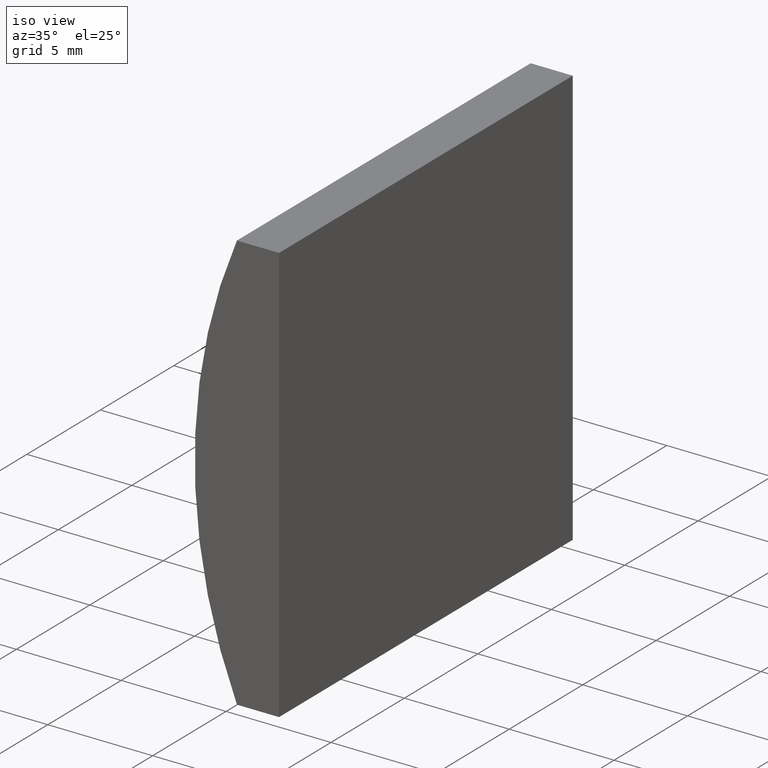
[diagram: clean part render]
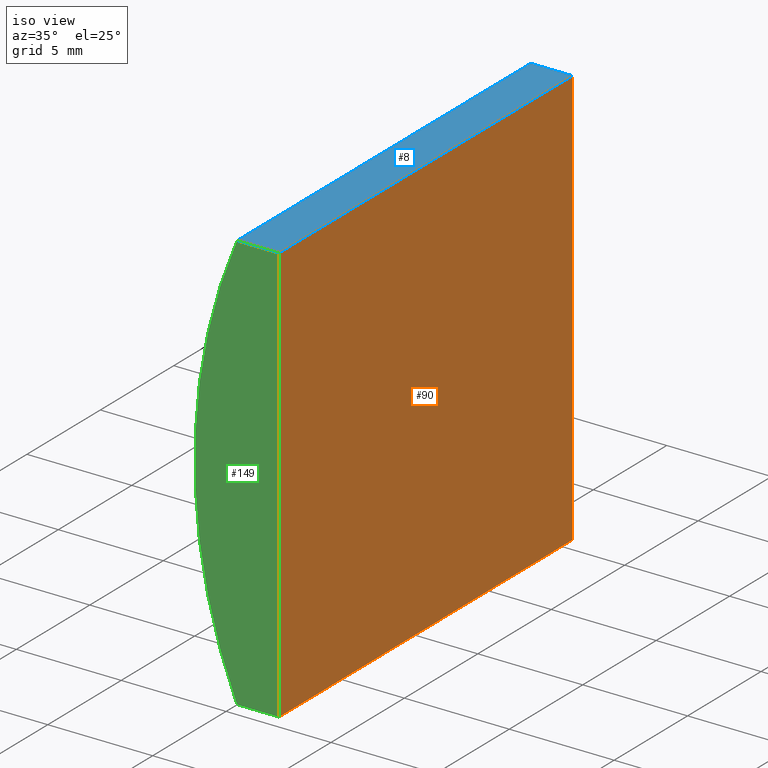
[diagram: same view with three faces highlighted in distinct colors, each labeled with its STEP entity id]
A machine part, iso view with three faces highlighted in distinct colors.
Their STEP definitions:

[orange] entity #90 — the highlighted planar face has unit normal (-1, 0, 0).
#13 = CARTESIAN_POINT ( 'NONE',  ( -17.47479566514874000, 0.0000000000000000000, -9.999999999999996400 ) ) ;
#19 = VECTOR ( 'NONE', #172, 1000.000000000000000 ) ;
#20 = VECTOR ( 'NONE', #185, 1000.000000000000000 ) ;
#24 = CARTESIAN_POINT ( 'NONE',  ( -17.47479566514874000, 20.00000000000000000, -9.999999999999996400 ) ) ;
#32 = VERTEX_POINT ( 'NONE', #102 ) ;
#37 = ORIENTED_EDGE ( 'NONE', *, *, #128, .T. ) ;
#40 = LINE ( 'NONE', #13, #161 ) ;
#46 = LINE ( 'NONE', #52, #65 ) ;
#51 = CARTESIAN_POINT ( 'NONE',  ( -17.47479566514874000, 20.00000000000000000, -9.999999999999996400 ) ) ;
#52 = CARTESIAN_POINT ( 'NONE',  ( -17.47479566514874000, 20.00000000000000000, -9.999999999999996400 ) ) ;
#53 = CARTESIAN_POINT ( 'NONE',  ( -17.47479566514874000, 20.00000000000000000, -9.999999999999996400 ) ) ;
#65 = VECTOR ( 'NONE', #191, 1000.000000000000000 ) ;
#69 = VERTEX_POINT ( 'NONE', #53 ) ;
#71 = ORIENTED_EDGE ( 'NONE', *, *, #132, .T. ) ;
#75 = ORIENTED_EDGE ( 'NONE', *, *, #201, .F. ) ;
#81 = EDGE_LOOP ( 'NONE', ( #71, #193, #75, #37 ) ) ;
#90 = ADVANCED_FACE ( 'NONE', ( #100 ), #109, .F. ) ;
#92 = EDGE_CURVE ( 'NONE', #69, #32, #174, .T. ) ;
#100 = FACE_OUTER_BOUND ( 'NONE', #81, .T. ) ;
#102 = CARTESIAN_POINT ( 'NONE',  ( -17.47479566514874000, 0.0000000000000000000, -9.999999999999996400 ) ) ;
#109 = PLANE ( 'NONE',  #157 ) ;
#113 = VERTEX_POINT ( 'NONE', #171 ) ;
#121 = CARTESIAN_POINT ( 'NONE',  ( -17.47479566514873300, 20.00000000000000000, 10.00000000000000000 ) ) ;
#128 = EDGE_CURVE ( 'NONE', #162, #113, #155, .T. ) ;
#132 = EDGE_CURVE ( 'NONE', #113, #32, #40, .T. ) ;
#145 = DIRECTION ( 'NONE',  ( -3.469446951953614700E-016, -0.0000000000000000000, -1.000000000000000000 ) ) ;
#155 = LINE ( 'NONE', #121, #20 ) ;
#157 = AXIS2_PLACEMENT_3D ( 'NONE', #24, #202, #204 ) ;
#161 = VECTOR ( 'NONE', #145, 1000.000000000000000 ) ;
#162 = VERTEX_POINT ( 'NONE', #186 ) ;
#171 = CARTESIAN_POINT ( 'NONE',  ( -17.47479566514873300, 0.0000000000000000000, 10.00000000000000000 ) ) ;
#172 = DIRECTION ( 'NONE',  ( -0.0000000000000000000, -1.000000000000000000, -0.0000000000000000000 ) ) ;
#174 = LINE ( 'NONE', #51, #19 ) ;
#185 = DIRECTION ( 'NONE',  ( -0.0000000000000000000, -1.000000000000000000, -0.0000000000000000000 ) ) ;
#186 = CARTESIAN_POINT ( 'NONE',  ( -17.47479566514873300, 20.00000000000000000, 10.00000000000000000 ) ) ;
#191 = DIRECTION ( 'NONE',  ( -3.469446951953614700E-016, -0.0000000000000000000, -1.000000000000000000 ) ) ;
#193 = ORIENTED_EDGE ( 'NONE', *, *, #92, .F. ) ;
#201 = EDGE_CURVE ( 'NONE', #162, #69, #46, .T. ) ;
#202 = DIRECTION ( 'NONE',  ( -1.000000000000000000, 0.0000000000000000000, 3.469446951953615200E-016 ) ) ;
#204 = DIRECTION ( 'NONE',  ( 3.469446951953615200E-016, 0.0000000000000000000, 1.000000000000000000 ) ) ;

[blue] entity #8 — the highlighted planar face has unit normal (0, 0, -1).
#8 = ADVANCED_FACE ( 'NONE', ( #91 ), #184, .F. ) ;
#10 = EDGE_CURVE ( 'NONE', #99, #105, #108, .T. ) ;
#14 = DIRECTION ( 'NONE',  ( -1.000000000000000000, 0.0000000000000000000, -0.0000000000000000000 ) ) ;
#15 = ORIENTED_EDGE ( 'NONE', *, *, #199, .T. ) ;
#17 = ORIENTED_EDGE ( 'NONE', *, *, #10, .T. ) ;
#20 = VECTOR ( 'NONE', #185, 1000.000000000000000 ) ;
#43 = DIRECTION ( 'NONE',  ( 0.0000000000000000000, 0.0000000000000000000, -1.000000000000000000 ) ) ;
#59 = EDGE_LOOP ( 'NONE', ( #15, #60, #147, #17 ) ) ;
#60 = ORIENTED_EDGE ( 'NONE', *, *, #128, .F. ) ;
#67 = CARTESIAN_POINT ( 'NONE',  ( -19.48221373003152100, 20.00000000000000000, 10.00000000000000000 ) ) ;
#74 = EDGE_CURVE ( 'NONE', #99, #162, #117, .T. ) ;
#78 = DIRECTION ( 'NONE',  ( 1.000000000000000000, 0.0000000000000000000, 0.0000000000000000000 ) ) ;
#80 = CARTESIAN_POINT ( 'NONE',  ( -19.48221373003152100, 20.00000000000000000, 10.00000000000000000 ) ) ;
#86 = CARTESIAN_POINT ( 'NONE',  ( -19.48221373003152100, 0.0000000000000000000, 10.00000000000000000 ) ) ;
#91 = FACE_OUTER_BOUND ( 'NONE', #59, .T. ) ;
#93 = VECTOR ( 'NONE', #78, 1000.000000000000000 ) ;
#94 = DIRECTION ( 'NONE',  ( -0.0000000000000000000, -1.000000000000000000, -0.0000000000000000000 ) ) ;
#96 = LINE ( 'NONE', #86, #93 ) ;
#98 = CARTESIAN_POINT ( 'NONE',  ( -19.48221373003152100, 20.00000000000000000, 10.00000000000000000 ) ) ;
#99 = VERTEX_POINT ( 'NONE', #98 ) ;
#105 = VERTEX_POINT ( 'NONE', #169 ) ;
#108 = LINE ( 'NONE', #80, #127 ) ;
#113 = VERTEX_POINT ( 'NONE', #171 ) ;
#116 = DIRECTION ( 'NONE',  ( 1.000000000000000000, 0.0000000000000000000, 0.0000000000000000000 ) ) ;
#117 = LINE ( 'NONE', #187, #173 ) ;
#118 = AXIS2_PLACEMENT_3D ( 'NONE', #67, #43, #14 ) ;
#121 = CARTESIAN_POINT ( 'NONE',  ( -17.47479566514873300, 20.00000000000000000, 10.00000000000000000 ) ) ;
#127 = VECTOR ( 'NONE', #94, 1000.000000000000000 ) ;
#128 = EDGE_CURVE ( 'NONE', #162, #113, #155, .T. ) ;
#147 = ORIENTED_EDGE ( 'NONE', *, *, #74, .F. ) ;
#155 = LINE ( 'NONE', #121, #20 ) ;
#162 = VERTEX_POINT ( 'NONE', #186 ) ;
#169 = CARTESIAN_POINT ( 'NONE',  ( -19.48221373003152100, 0.0000000000000000000, 10.00000000000000000 ) ) ;
#171 = CARTESIAN_POINT ( 'NONE',  ( -17.47479566514873300, 0.0000000000000000000, 10.00000000000000000 ) ) ;
#173 = VECTOR ( 'NONE', #116, 1000.000000000000000 ) ;
#184 = PLANE ( 'NONE',  #118 ) ;
#185 = DIRECTION ( 'NONE',  ( -0.0000000000000000000, -1.000000000000000000, -0.0000000000000000000 ) ) ;
#186 = CARTESIAN_POINT ( 'NONE',  ( -17.47479566514873300, 20.00000000000000000, 10.00000000000000000 ) ) ;
#187 = CARTESIAN_POINT ( 'NONE',  ( -19.48221373003152100, 20.00000000000000000, 10.00000000000000000 ) ) ;
#199 = EDGE_CURVE ( 'NONE', #105, #113, #96, .T. ) ;

[green] entity #149 — the highlighted planar face has unit normal (0, 1, 0).
#4 = EDGE_LOOP ( 'NONE', ( #122, #11, #178, #62 ) ) ;
#5 = EDGE_CURVE ( 'NONE', #54, #105, #12, .T. ) ;
#7 = DIRECTION ( 'NONE',  ( -1.000000000000000000, -0.0000000000000000000, -1.728313106595564600E-015 ) ) ;
#11 = ORIENTED_EDGE ( 'NONE', *, *, #176, .F. ) ;
#12 = CIRCLE ( 'NONE', #70, 25.85000000000000500 ) ;
#13 = CARTESIAN_POINT ( 'NONE',  ( -17.47479566514874000, 0.0000000000000000000, -9.999999999999996400 ) ) ;
#23 = FACE_OUTER_BOUND ( 'NONE', #4, .T. ) ;
#32 = VERTEX_POINT ( 'NONE', #102 ) ;
#34 = DIRECTION ( 'NONE',  ( 0.0000000000000000000, 1.000000000000000000, 0.0000000000000000000 ) ) ;
#40 = LINE ( 'NONE', #13, #161 ) ;
#47 = PLANE ( 'NONE',  #103 ) ;
#54 = VERTEX_POINT ( 'NONE', #175 ) ;
#58 = CARTESIAN_POINT ( 'NONE',  ( 4.355204334851265500, 0.0000000000000000000, 4.286263797015675000E-017 ) ) ;
#62 = ORIENTED_EDGE ( 'NONE', *, *, #199, .F. ) ;
#70 = AXIS2_PLACEMENT_3D ( 'NONE', #112, #34, #146 ) ;
#73 = CARTESIAN_POINT ( 'NONE',  ( -19.48221373003152100, 0.0000000000000000000, -10.00000000000000000 ) ) ;
#78 = DIRECTION ( 'NONE',  ( 1.000000000000000000, 0.0000000000000000000, 0.0000000000000000000 ) ) ;
#86 = CARTESIAN_POINT ( 'NONE',  ( -19.48221373003152100, 0.0000000000000000000, 10.00000000000000000 ) ) ;
#89 = VECTOR ( 'NONE', #7, 1000.000000000000000 ) ;
#93 = VECTOR ( 'NONE', #78, 1000.000000000000000 ) ;
#96 = LINE ( 'NONE', #86, #93 ) ;
#102 = CARTESIAN_POINT ( 'NONE',  ( -17.47479566514874000, 0.0000000000000000000, -9.999999999999996400 ) ) ;
#103 = AXIS2_PLACEMENT_3D ( 'NONE', #58, #134, #107 ) ;
#105 = VERTEX_POINT ( 'NONE', #169 ) ;
#107 = DIRECTION ( 'NONE',  ( 0.0000000000000000000, -0.0000000000000000000, 1.000000000000000000 ) ) ;
#112 = CARTESIAN_POINT ( 'NONE',  ( 4.355204334851265500, 0.0000000000000000000, 4.286263797015675000E-017 ) ) ;
#113 = VERTEX_POINT ( 'NONE', #171 ) ;
#122 = ORIENTED_EDGE ( 'NONE', *, *, #5, .F. ) ;
#132 = EDGE_CURVE ( 'NONE', #113, #32, #40, .T. ) ;
#134 = DIRECTION ( 'NONE',  ( 0.0000000000000000000, 1.000000000000000000, 0.0000000000000000000 ) ) ;
#145 = DIRECTION ( 'NONE',  ( -3.469446951953614700E-016, -0.0000000000000000000, -1.000000000000000000 ) ) ;
#146 = DIRECTION ( 'NONE',  ( 0.0000000000000000000, 0.0000000000000000000, 1.000000000000000000 ) ) ;
#148 = LINE ( 'NONE', #73, #89 ) ;
#149 = ADVANCED_FACE ( 'NONE', ( #23 ), #47, .F. ) ;
#161 = VECTOR ( 'NONE', #145, 1000.000000000000000 ) ;
#169 = CARTESIAN_POINT ( 'NONE',  ( -19.48221373003152100, 0.0000000000000000000, 10.00000000000000000 ) ) ;
#171 = CARTESIAN_POINT ( 'NONE',  ( -17.47479566514873300, 0.0000000000000000000, 10.00000000000000000 ) ) ;
#175 = CARTESIAN_POINT ( 'NONE',  ( -19.48221373003152100, 0.0000000000000000000, -10.00000000000000000 ) ) ;
#176 = EDGE_CURVE ( 'NONE', #32, #54, #148, .T. ) ;
#178 = ORIENTED_EDGE ( 'NONE', *, *, #132, .F. ) ;
#199 = EDGE_CURVE ( 'NONE', #105, #113, #96, .T. ) ;